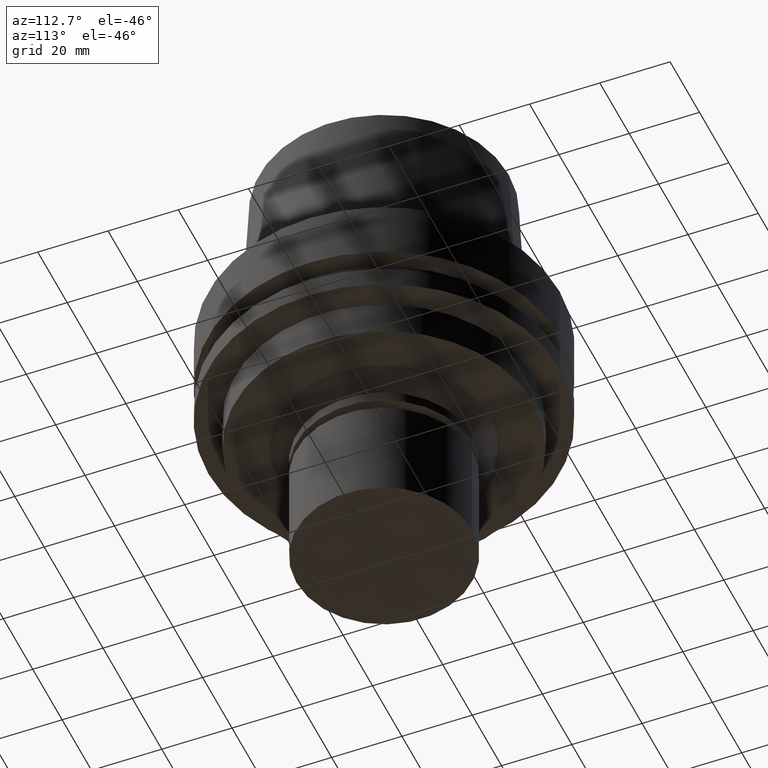
[diagram: clean part render]
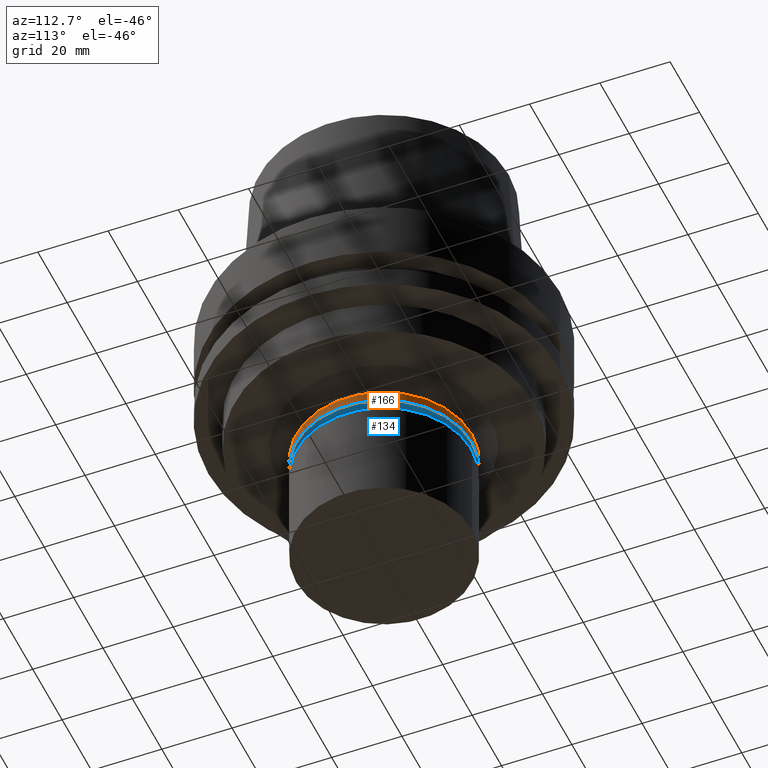
[diagram: same view with the hole feature highlighted: cylindrical wall and planar end face, labeled with their STEP entity ids]
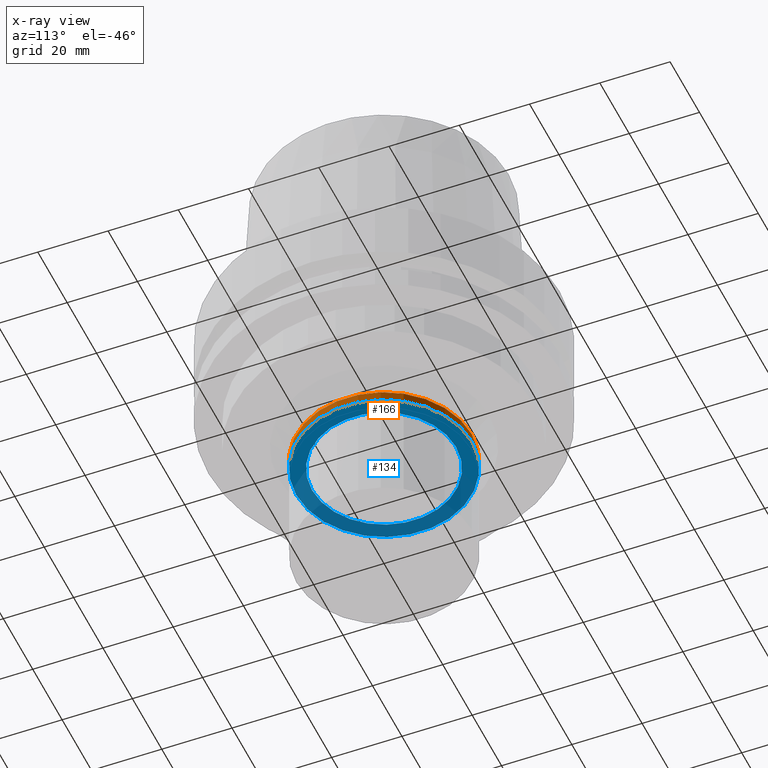
[diagram: x-ray of the same camera — body ghosted, the hole faces saturated]
A machine part, auxiliary view. The highlighted faces form one hole feature of diameter 50 mm: the cylindrical wall (entity #166, orange) and its adjacent planar end face (entity #134, blue) — they share a circular edge in the B-rep.
The next image is the same camera in x-ray (body ghosted, the hole faces saturated) — the bore reads through the body.
Wall:
#97=EDGE_CURVE('Unnamed[1]',#244,#244,#245,.T.);
#166=ADVANCED_FACE('Unnamed[1]',(#350,#351),#352,.T.);
#189=EDGE_CURVE('Unnamed[1]',#388,#388,#389,.T.);
#244=VERTEX_POINT('',#449);
#245=CIRCLE('',#450,25.0);
#350=FACE_BOUND('',#581,.T.);
#351=FACE_BOUND('',#582,.T.);
#352=CYLINDRICAL_SURFACE('',#583,25.0);
#388=VERTEX_POINT('',#628);
#389=CIRCLE('',#629,25.0);
#449=CARTESIAN_POINT('',(2.87792962633957E-015,25.0,-47.0001575694037));
#450=AXIS2_PLACEMENT_3D('',#678,#679,#680);
#581=EDGE_LOOP('',(#795));
#582=EDGE_LOOP('',(#796));
#583=AXIS2_PLACEMENT_3D('',#797,#798,#799);
#628=CARTESIAN_POINT('',(2.69422295812418E-015,25.0,-44.0));
#629=AXIS2_PLACEMENT_3D('',#839,#840,#841);
#678=CARTESIAN_POINT('',(2.87792962633957E-015,5.75585925267915E-015,-47.0001575694037));
#679=DIRECTION('',(6.12323399573677E-017,1.22464679914735E-016,-1.0));
#680=DIRECTION('',(-1.23259516440783E-032,1.0,1.22464679914735E-016));
#795=ORIENTED_EDGE('',*,*,#97,.F.);
#796=ORIENTED_EDGE('',*,*,#189,.T.);
#797=CARTESIAN_POINT('',(2.78607629223188E-015,5.57215258446375E-015,-45.5000787847019));
#798=DIRECTION('',(6.12323399573677E-017,1.22464679914735E-016,-1.0));
#799=DIRECTION('',(-1.23259516440783E-032,1.0,1.22464679914735E-016));
#839=CARTESIAN_POINT('',(2.69422295812418E-015,5.38844591624835E-015,-44.0));
#840=DIRECTION('',(6.12323399573677E-017,1.22464679914735E-016,-1.0));
#841=DIRECTION('',(-1.23259516440783E-032,1.0,1.22464679914735E-016));
End face:
#97=EDGE_CURVE('Unnamed[1]',#244,#244,#245,.T.);
#134=ADVANCED_FACE('Unnamed[1]',(#299,#300),#301,.T.);
#154=EDGE_CURVE('Unnamed[1]',#332,#332,#333,.T.);
#244=VERTEX_POINT('',#449);
#245=CIRCLE('',#450,25.0);
#299=FACE_BOUND('',#517,.T.);
#300=FACE_OUTER_BOUND('',#518,.T.);
#301=PLANE('',#519);
#332=VERTEX_POINT('',#558);
#333=CIRCLE('',#559,20.4999999999911);
#449=CARTESIAN_POINT('',(2.87792962633957E-015,25.0,-47.0001575694037));
#450=AXIS2_PLACEMENT_3D('',#678,#679,#680);
#517=EDGE_LOOP('',(#738));
#518=EDGE_LOOP('',(#739));
#519=AXIS2_PLACEMENT_3D('',#740,#741,#742);
#558=CARTESIAN_POINT('',(2.8779296263396E-015,20.4999999999911,-47.0001575694042));
#559=AXIS2_PLACEMENT_3D('',#776,#777,#778);
#678=CARTESIAN_POINT('',(2.87792962633957E-015,5.75585925267915E-015,-47.0001575694037));
#679=DIRECTION('',(6.12323399573677E-017,1.22464679914735E-016,-1.0));
#680=DIRECTION('',(-1.23259516440783E-032,1.0,1.22464679914735E-016));
#738=ORIENTED_EDGE('',*,*,#154,.F.);
#739=ORIENTED_EDGE('',*,*,#97,.T.);
#740=CARTESIAN_POINT('',(2.87792962633959E-015,22.7499999999955,-47.000157569404));
#741=DIRECTION('',(6.12323399573677E-017,1.05914383115098E-013,-1.0));
#742=DIRECTION('',(-6.49021266600931E-030,1.0,1.05914383115098E-013));
#776=CARTESIAN_POINT('',(2.8779296263396E-015,5.75585925267921E-015,-47.0001575694042));
#777=DIRECTION('',(6.12323399573677E-017,1.22464679914735E-016,-1.0));
#778=DIRECTION('',(-1.23259516440783E-032,1.0,1.22464679914735E-016));